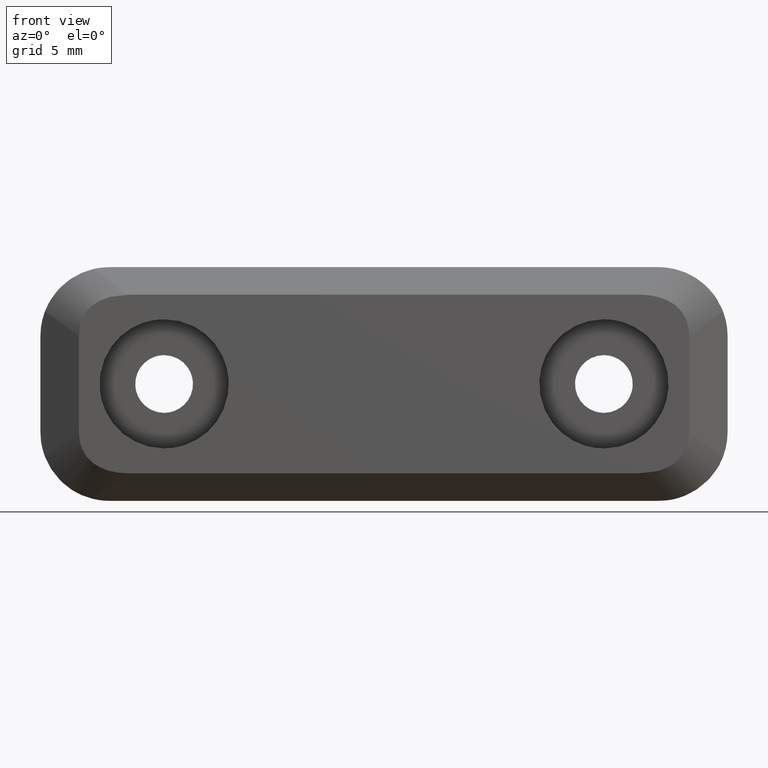
[diagram: clean part render]
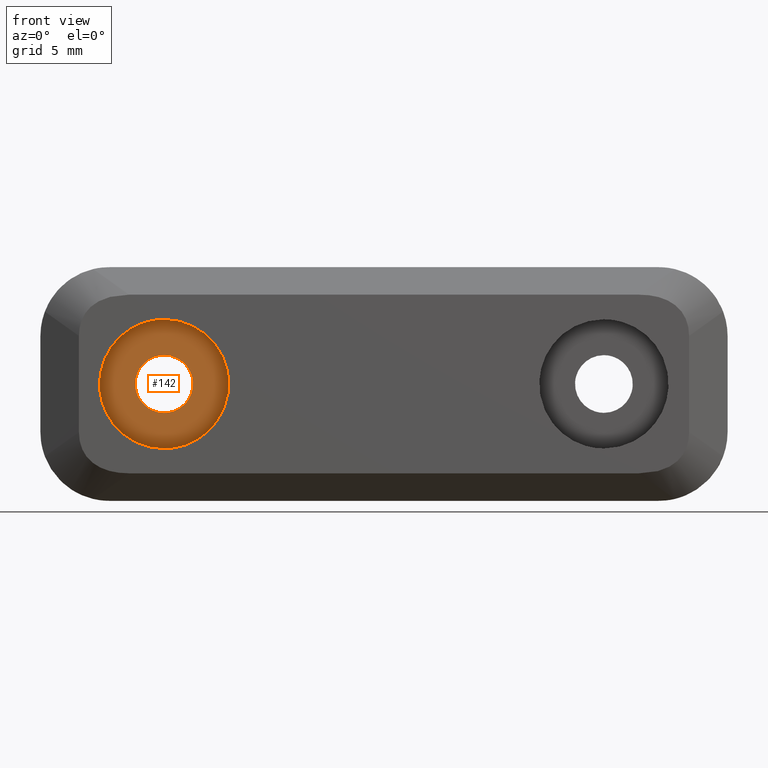
[diagram: same view with one face highlighted and labeled with its STEP entity id]
A machine part, front view. The second image highlights one B-rep face of the part: STEP entity #142.
In plain terms, the highlighted face is a freeform B-spline surface patch.
Its self-contained STEP definition (entity closure, byte-faithful):
#5=CARTESIAN_POINT('',(-21.168095426056659,-3.600000000000000,-5.169529981780976));
#6=CARTESIAN_POINT('',(-21.168095426056659,-3.600000000000000,5.169530233908623));
#7=CARTESIAN_POINT('',(-10.831904405858239,-3.600000000000000,-5.169529981780976));
#8=CARTESIAN_POINT('',(-10.831904405858239,-3.600000000000000,5.169530233908623));
#9=B_SPLINE_SURFACE_WITH_KNOTS('',1,1,((#5,#7),(#6,#8)),.UNSPECIFIED.,.F.,.F.,.U.,(2,2),(2,2),(0.0,10.339060215689599),(0.0,10.336191020198420),.UNSPECIFIED.);
#10=CARTESIAN_POINT('',(-11.314488531456330,-3.600000000000000,0.368757749946635));
#11=VERTEX_POINT('',#10);
#12=CARTESIAN_POINT('',(-16.0,-3.600000000000000,-4.700000000000000));
#13=VERTEX_POINT('',#12);
#14=CARTESIAN_POINT('',(-11.314488531456329,-3.599999999999999,0.368757749946635));
#15=CARTESIAN_POINT('',(-11.300000000000006,-3.600000000000000,0.184663502948989));
#16=CARTESIAN_POINT('',(-11.300000000000001,-3.600000000000000,0.0));
#17=CARTESIAN_POINT('',(-11.300000000000001,-3.600000000000000,-4.700000000000000));
#18=CARTESIAN_POINT('',(-16.0,-3.600000000000000,-4.700000000000000));
#26=(BOUNDED_CURVE()B_SPLINE_CURVE(2,(#14,#15,#16,#17,#18),.UNSPECIFIED.,.F.,.U.)B_SPLINE_CURVE_WITH_KNOTS((3,2,3),(0.736331300631824,0.750000000000000,1.0),.UNSPECIFIED.)CURVE()GEOMETRIC_REPRESENTATION_ITEM()RATIONAL_B_SPLINE_CURVE((0.969723356169848,0.983986122580246,1.0,0.707106781186547,1.0))REPRESENTATION_ITEM(''));
#27=EDGE_CURVE('',#11,#13,#26,.T.);
#28=ORIENTED_EDGE('',*,*,#27,.F.);
#29=CARTESIAN_POINT('',(-16.0,-3.600000000000000,4.700000000000000));
#30=VERTEX_POINT('',#29);
#31=CARTESIAN_POINT('',(-16.0,-3.600000000000000,4.700000000000000));
#32=CARTESIAN_POINT('',(-11.655364689230392,-3.600000000000001,4.700000000000000));
#33=CARTESIAN_POINT('',(-11.314488531456329,-3.599999999999999,0.368757749946635));
#41=(BOUNDED_CURVE()B_SPLINE_CURVE(2,(#31,#32,#33),.UNSPECIFIED.,.F.,.U.)B_SPLINE_CURVE_WITH_KNOTS((3,3),(0.500000000000000,0.736331300631824),.UNSPECIFIED.)CURVE()GEOMETRIC_REPRESENTATION_ITEM()RATIONAL_B_SPLINE_CURVE((1.0,0.723120658606301,0.969723356169848))REPRESENTATION_ITEM(''));
#42=EDGE_CURVE('',#30,#11,#41,.T.);
#43=ORIENTED_EDGE('',*,*,#42,.F.);
#44=CARTESIAN_POINT('',(-20.685511468543670,-3.600000000000000,-0.368757749946634));
#45=VERTEX_POINT('',#44);
#46=CARTESIAN_POINT('',(-20.685511468543673,-3.600000000000000,-0.368757749946634));
#47=CARTESIAN_POINT('',(-20.699999999999996,-3.599999999999999,-0.184663502948988));
#48=CARTESIAN_POINT('',(-20.699999999999999,-3.600000000000000,0.0));
#49=CARTESIAN_POINT('',(-20.699999999999996,-3.600000000000000,4.700000000000000));
#50=CARTESIAN_POINT('',(-16.0,-3.600000000000000,4.700000000000000));
#58=(BOUNDED_CURVE()B_SPLINE_CURVE(2,(#46,#47,#48,#49,#50),.UNSPECIFIED.,.F.,.U.)B_SPLINE_CURVE_WITH_KNOTS((3,2,3),(0.236331300631824,0.250000000000000,0.500000000000000),.UNSPECIFIED.)CURVE()GEOMETRIC_REPRESENTATION_ITEM()RATIONAL_B_SPLINE_CURVE((0.969723356169848,0.983986122580247,1.0,0.707106781186547,1.0))REPRESENTATION_ITEM(''));
#59=EDGE_CURVE('',#45,#30,#58,.T.);
#60=ORIENTED_EDGE('',*,*,#59,.F.);
#61=CARTESIAN_POINT('',(-16.0,-3.600000000000000,-4.700000000000000));
#62=CARTESIAN_POINT('',(-20.344635310769615,-3.600000000000001,-4.700000000000001));
#63=CARTESIAN_POINT('',(-20.685511468543673,-3.600000000000000,-0.368757749946634));
#71=(BOUNDED_CURVE()B_SPLINE_CURVE(2,(#61,#62,#63),.UNSPECIFIED.,.F.,.U.)B_SPLINE_CURVE_WITH_KNOTS((3,3),(0.0,0.236331300631824),.UNSPECIFIED.)CURVE()GEOMETRIC_REPRESENTATION_ITEM()RATIONAL_B_SPLINE_CURVE((1.0,0.723120658606301,0.969723356169848))REPRESENTATION_ITEM(''));
#72=EDGE_CURVE('',#13,#45,#71,.T.);
#73=ORIENTED_EDGE('',*,*,#72,.F.);
#74=EDGE_LOOP('',(#28,#43,#60,#73));
#75=FACE_OUTER_BOUND('',#74,.T.);
#76=CARTESIAN_POINT('',(-16.0,-3.600000000000000,2.100000000000025));
#77=VERTEX_POINT('',#76);
#78=CARTESIAN_POINT('',(-13.906473599165450,-3.600000000000000,0.164764101092588));
#79=VERTEX_POINT('',#78);
#80=CARTESIAN_POINT('',(-16.0,-3.600000000000000,2.100000000000025));
#81=CARTESIAN_POINT('',(-14.058779967577369,-3.600000000000001,2.100000000000025));
#82=CARTESIAN_POINT('',(-13.906473599165457,-3.600000000000001,0.164764101092587));
#90=(BOUNDED_CURVE()B_SPLINE_CURVE(2,(#80,#81,#82),.UNSPECIFIED.,.F.,.U.)B_SPLINE_CURVE_WITH_KNOTS((3,3),(0.500000000000000,0.736331300627517),.UNSPECIFIED.)CURVE()GEOMETRIC_REPRESENTATION_ITEM()RATIONAL_B_SPLINE_CURVE((1.0,0.723120658611347,0.969723356160860))REPRESENTATION_ITEM(''));
#91=EDGE_CURVE('',#77,#79,#90,.T.);
#92=ORIENTED_EDGE('',*,*,#91,.T.);
#93=CARTESIAN_POINT('',(-16.0,-3.600000000000000,-2.100000000000025));
#94=VERTEX_POINT('',#93);
#95=CARTESIAN_POINT('',(-13.906473599165457,-3.600000000000001,0.164764101092587));
#96=CARTESIAN_POINT('',(-13.899999999999972,-3.600000000000000,0.082509224748312));
#97=CARTESIAN_POINT('',(-13.899999999999981,-3.600000000000000,0.0));
#98=CARTESIAN_POINT('',(-13.899999999999974,-3.600000000000000,-2.100000000000025));
#99=CARTESIAN_POINT('',(-16.0,-3.600000000000000,-2.100000000000025));
#107=(BOUNDED_CURVE()B_SPLINE_CURVE(2,(#95,#96,#97,#98,#99),.UNSPECIFIED.,.F.,.U.)B_SPLINE_CURVE_WITH_KNOTS((3,2,3),(0.736331300627517,0.750000000000000,1.0),.UNSPECIFIED.)CURVE()GEOMETRIC_REPRESENTATION_ITEM()RATIONAL_B_SPLINE_CURVE((0.969723356160860,0.983986122575200,1.0,0.707106781186548,1.0))REPRESENTATION_ITEM(''));
#108=EDGE_CURVE('',#79,#94,#107,.T.);
#109=ORIENTED_EDGE('',*,*,#108,.T.);
#110=CARTESIAN_POINT('',(-18.093526400834548,-3.600000000000001,-0.164764101092588));
#111=VERTEX_POINT('',#110);
#112=CARTESIAN_POINT('',(-16.0,-3.600000000000000,-2.100000000000025));
#113=CARTESIAN_POINT('',(-17.941220032422635,-3.600000000000001,-2.100000000000025));
#114=CARTESIAN_POINT('',(-18.093526400834548,-3.600000000000001,-0.164764101092588));
#122=(BOUNDED_CURVE()B_SPLINE_CURVE(2,(#112,#113,#114),.UNSPECIFIED.,.F.,.U.)B_SPLINE_CURVE_WITH_KNOTS((3,3),(0.0,0.236331300627517),.UNSPECIFIED.)CURVE()GEOMETRIC_REPRESENTATION_ITEM()RATIONAL_B_SPLINE_CURVE((1.0,0.723120658611347,0.969723356160860))REPRESENTATION_ITEM(''));
#123=EDGE_CURVE('',#94,#111,#122,.T.);
#124=ORIENTED_EDGE('',*,*,#123,.T.);
#125=CARTESIAN_POINT('',(-18.093526400834548,-3.600000000000001,-0.164764101092588));
#126=CARTESIAN_POINT('',(-18.100000000000023,-3.600000000000000,-0.082509224748312));
#127=CARTESIAN_POINT('',(-18.100000000000030,-3.600000000000000,0.0));
#128=CARTESIAN_POINT('',(-18.100000000000026,-3.600000000000000,2.100000000000025));
#129=CARTESIAN_POINT('',(-16.0,-3.600000000000000,2.100000000000025));
#137=(BOUNDED_CURVE()B_SPLINE_CURVE(2,(#125,#126,#127,#128,#129),.UNSPECIFIED.,.F.,.U.)B_SPLINE_CURVE_WITH_KNOTS((3,2,3),(0.236331300627517,0.250000000000000,0.500000000000000),.UNSPECIFIED.)CURVE()GEOMETRIC_REPRESENTATION_ITEM()RATIONAL_B_SPLINE_CURVE((0.969723356160860,0.983986122575200,1.0,0.707106781186548,1.0))REPRESENTATION_ITEM(''));
#138=EDGE_CURVE('',#111,#77,#137,.T.);
#139=ORIENTED_EDGE('',*,*,#138,.T.);
#140=EDGE_LOOP('',(#92,#109,#124,#139));
#141=FACE_BOUND('',#140,.T.);
#142=ADVANCED_FACE('',(#75,#141),#9,.F.);